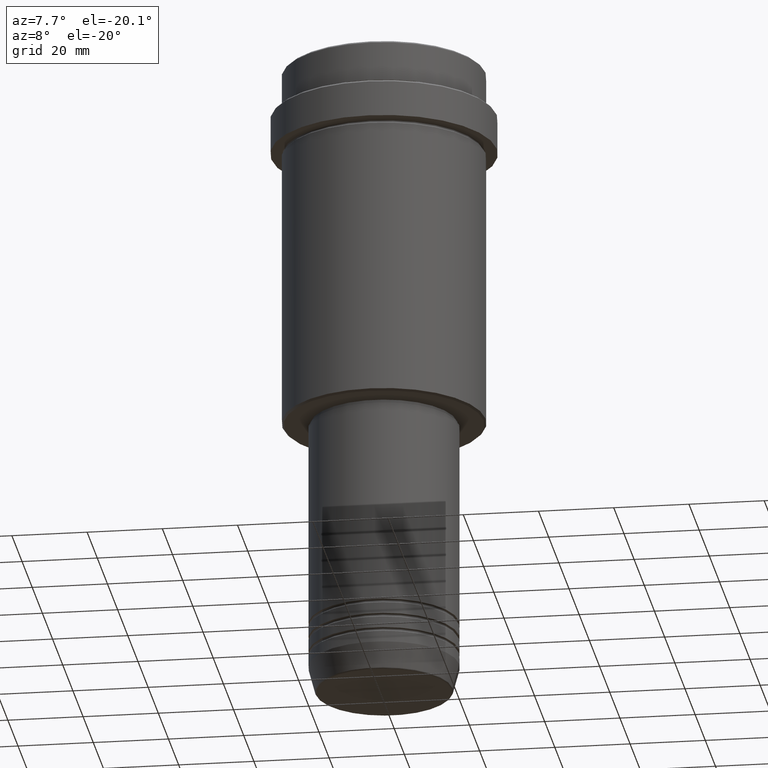
[diagram: clean part render]
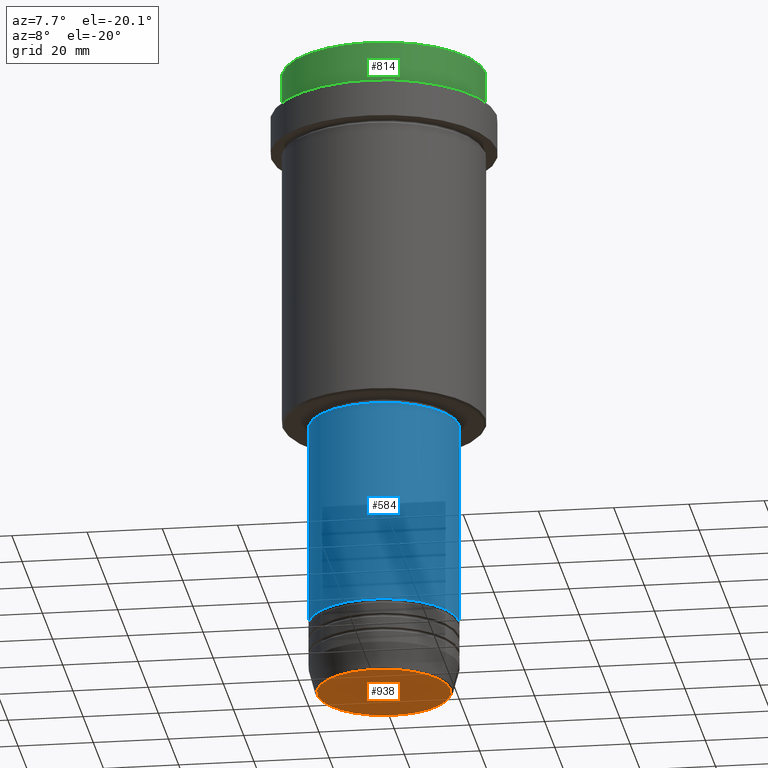
[diagram: same view with three faces highlighted in distinct colors, each labeled with its STEP entity id]
A machine part, auxiliary view with three faces highlighted in distinct colors.
Their STEP definitions:

[orange] entity #938 — the highlighted planar face has unit normal (0, -0, 1).
#2 = CIRCLE ( 'NONE', #435, 17.74069215899266538 ) ;
#114 = AXIS2_PLACEMENT_3D ( 'NONE', #652, #232, #764 ) ;
#217 = FACE_OUTER_BOUND ( 'NONE', #494, .T. ) ;
#232 = DIRECTION ( 'NONE',  ( 0.000000000000000000, -0.000000000000000000, 1.000000000000000000 ) ) ;
#253 = CARTESIAN_POINT ( 'NONE',  ( 0.000000000000000000, 0.000000000000000000, -173.0000000000000000 ) ) ;
#331 = PLANE ( 'NONE',  #114 ) ;
#435 = AXIS2_PLACEMENT_3D ( 'NONE', #1180, #860, #1073 ) ;
#494 = EDGE_LOOP ( 'NONE', ( #887, #941 ) ) ;
#520 = VERTEX_POINT ( 'NONE', #861 ) ;
#652 = CARTESIAN_POINT ( 'NONE',  ( 0.000000000000000000, 0.000000000000000000, -173.0000000000000000 ) ) ;
#681 = DIRECTION ( 'NONE',  ( 0.000000000000000000, 0.000000000000000000, -1.000000000000000000 ) ) ;
#688 = AXIS2_PLACEMENT_3D ( 'NONE', #253, #681, #1020 ) ;
#764 = DIRECTION ( 'NONE',  ( 1.000000000000000000, 0.000000000000000000, 0.000000000000000000 ) ) ;
#860 = DIRECTION ( 'NONE',  ( 0.000000000000000000, 0.000000000000000000, -1.000000000000000000 ) ) ;
#861 = CARTESIAN_POINT ( 'NONE',  ( 17.74069215899266538, 0.000000000000000000, -173.0000000000000000 ) ) ;
#887 = ORIENTED_EDGE ( 'NONE', *, *, #1013, .T. ) ;
#938 = ADVANCED_FACE ( 'NONE', ( #217 ), #331, .F. ) ;
#941 = ORIENTED_EDGE ( 'NONE', *, *, #1133, .T. ) ;
#1013 = EDGE_CURVE ( 'NONE', #520, #1036, #2, .T. ) ;
#1020 = DIRECTION ( 'NONE',  ( 1.000000000000000000, 0.000000000000000000, 0.000000000000000000 ) ) ;
#1036 = VERTEX_POINT ( 'NONE', #1406 ) ;
#1073 = DIRECTION ( 'NONE',  ( 1.000000000000000000, 0.000000000000000000, 0.000000000000000000 ) ) ;
#1133 = EDGE_CURVE ( 'NONE', #1036, #520, #1303, .T. ) ;
#1180 = CARTESIAN_POINT ( 'NONE',  ( 0.000000000000000000, 0.000000000000000000, -173.0000000000000000 ) ) ;
#1303 = CIRCLE ( 'NONE', #688, 17.74069215899266538 ) ;
#1406 = CARTESIAN_POINT ( 'NONE',  ( -17.74069215899266538, 2.202181136001358353E-15, -173.0000000000000000 ) ) ;

[blue] entity #584 — the highlighted cylindrical surface (partial cylindrical patch) has radius 20 mm, axis along (-0, -0, 1).
#19 = VECTOR ( 'NONE', #418, 1000.000000000000000 ) ;
#65 = LINE ( 'NONE', #950, #19 ) ;
#121 = CYLINDRICAL_SURFACE ( 'NONE', #842, 19.99999999999999645 ) ;
#140 = CIRCLE ( 'NONE', #640, 20.00000000000000000 ) ;
#150 = ORIENTED_EDGE ( 'NONE', *, *, #335, .F. ) ;
#261 = CARTESIAN_POINT ( 'NONE',  ( 0.000000000000000000, 0.000000000000000000, -153.9999999999999147 ) ) ;
#317 = CARTESIAN_POINT ( 'NONE',  ( 0.000000000000000000, 0.000000000000000000, 0.000000000000000000 ) ) ;
#335 = EDGE_CURVE ( 'NONE', #544, #1153, #65, .T. ) ;
#418 = DIRECTION ( 'NONE',  ( -0.000000000000000000, -0.000000000000000000, 1.000000000000000000 ) ) ;
#447 = CARTESIAN_POINT ( 'NONE',  ( -20.00000000000000000, 2.449293598294706513E-15, -153.9999999999999147 ) ) ;
#531 = ORIENTED_EDGE ( 'NONE', *, *, #1335, .T. ) ;
#535 = ORIENTED_EDGE ( 'NONE', *, *, #1095, .F. ) ;
#544 = VERTEX_POINT ( 'NONE', #447 ) ;
#584 = ADVANCED_FACE ( 'NONE', ( #647 ), #121, .T. ) ;
#640 = AXIS2_PLACEMENT_3D ( 'NONE', #261, #1228, #1221 ) ;
#645 = LINE ( 'NONE', #1387, #1048 ) ;
#647 = FACE_OUTER_BOUND ( 'NONE', #713, .T. ) ;
#662 = CIRCLE ( 'NONE', #1070, 19.99999999999999645 ) ;
#675 = CARTESIAN_POINT ( 'NONE',  ( 19.99999999999999645, 0.000000000000000000, -99.00000000000000000 ) ) ;
#713 = EDGE_LOOP ( 'NONE', ( #150, #1287, #531, #535 ) ) ;
#752 = DIRECTION ( 'NONE',  ( 1.000000000000000000, 0.000000000000000000, 0.000000000000000000 ) ) ;
#782 = DIRECTION ( 'NONE',  ( 1.000000000000000000, 0.000000000000000000, 0.000000000000000000 ) ) ;
#789 = CARTESIAN_POINT ( 'NONE',  ( 0.000000000000000000, 0.000000000000000000, -99.00000000000000000 ) ) ;
#842 = AXIS2_PLACEMENT_3D ( 'NONE', #317, #884, #752 ) ;
#857 = DIRECTION ( 'NONE',  ( -0.000000000000000000, -0.000000000000000000, 1.000000000000000000 ) ) ;
#884 = DIRECTION ( 'NONE',  ( -0.000000000000000000, -0.000000000000000000, 1.000000000000000000 ) ) ;
#899 = DIRECTION ( 'NONE',  ( -0.000000000000000000, -0.000000000000000000, 1.000000000000000000 ) ) ;
#950 = CARTESIAN_POINT ( 'NONE',  ( -19.99999999999999645, 2.449293598294706119E-15, 0.000000000000000000 ) ) ;
#967 = VERTEX_POINT ( 'NONE', #1294 ) ;
#1048 = VECTOR ( 'NONE', #857, 1000.000000000000000 ) ;
#1070 = AXIS2_PLACEMENT_3D ( 'NONE', #789, #899, #782 ) ;
#1095 = EDGE_CURVE ( 'NONE', #1153, #1125, #662, .T. ) ;
#1096 = EDGE_CURVE ( 'NONE', #544, #967, #140, .T. ) ;
#1125 = VERTEX_POINT ( 'NONE', #675 ) ;
#1153 = VERTEX_POINT ( 'NONE', #1216 ) ;
#1216 = CARTESIAN_POINT ( 'NONE',  ( -19.99999999999999645, 2.449293598294706119E-15, -99.00000000000000000 ) ) ;
#1221 = DIRECTION ( 'NONE',  ( 1.000000000000000000, 0.000000000000000000, 0.000000000000000000 ) ) ;
#1228 = DIRECTION ( 'NONE',  ( -0.000000000000000000, -0.000000000000000000, 1.000000000000000000 ) ) ;
#1287 = ORIENTED_EDGE ( 'NONE', *, *, #1096, .T. ) ;
#1294 = CARTESIAN_POINT ( 'NONE',  ( 20.00000000000000000, 0.000000000000000000, -153.9999999999999147 ) ) ;
#1335 = EDGE_CURVE ( 'NONE', #967, #1125, #645, .T. ) ;
#1387 = CARTESIAN_POINT ( 'NONE',  ( 19.99999999999999645, 0.000000000000000000, 0.000000000000000000 ) ) ;

[green] entity #814 — the highlighted cylindrical surface (partial cylindrical patch) has radius 27 mm, axis along (-0, -0, 1).
#16 = DIRECTION ( 'NONE',  ( -0.000000000000000000, -0.000000000000000000, 1.000000000000000000 ) ) ;
#39 = ORIENTED_EDGE ( 'NONE', *, *, #564, .T. ) ;
#46 = CIRCLE ( 'NONE', #691, 26.99999999999999645 ) ;
#73 = CARTESIAN_POINT ( 'NONE',  ( -26.99999999999999645, 3.306546357697853339E-15, 0.000000000000000000 ) ) ;
#85 = DIRECTION ( 'NONE',  ( -0.000000000000000000, -0.000000000000000000, 1.000000000000000000 ) ) ;
#158 = VECTOR ( 'NONE', #16, 1000.000000000000000 ) ;
#200 = VERTEX_POINT ( 'NONE', #606 ) ;
#214 = DIRECTION ( 'NONE',  ( 1.000000000000000000, 0.000000000000000000, 0.000000000000000000 ) ) ;
#242 = ORIENTED_EDGE ( 'NONE', *, *, #851, .F. ) ;
#281 = VERTEX_POINT ( 'NONE', #362 ) ;
#312 = DIRECTION ( 'NONE',  ( 1.000000000000000000, 0.000000000000000000, 0.000000000000000000 ) ) ;
#347 = CARTESIAN_POINT ( 'NONE',  ( -26.99999999999999645, 3.306546357697853339E-15, -0.5000000000000038858 ) ) ;
#362 = CARTESIAN_POINT ( 'NONE',  ( 26.99999999999999645, 0.000000000000000000, -11.00000000000000178 ) ) ;
#389 = FACE_OUTER_BOUND ( 'NONE', #399, .T. ) ;
#399 = EDGE_LOOP ( 'NONE', ( #242, #1173, #39, #1042 ) ) ;
#408 = LINE ( 'NONE', #73, #1045 ) ;
#502 = CIRCLE ( 'NONE', #896, 26.99999999999999645 ) ;
#515 = DIRECTION ( 'NONE',  ( -0.000000000000000000, -0.000000000000000000, 1.000000000000000000 ) ) ;
#564 = EDGE_CURVE ( 'NONE', #281, #674, #1100, .T. ) ;
#606 = CARTESIAN_POINT ( 'NONE',  ( -26.99999999999999645, 3.306546357697853339E-15, -11.00000000000000178 ) ) ;
#674 = VERTEX_POINT ( 'NONE', #912 ) ;
#691 = AXIS2_PLACEMENT_3D ( 'NONE', #733, #1195, #214 ) ;
#733 = CARTESIAN_POINT ( 'NONE',  ( 0.000000000000000000, 0.000000000000000000, -0.5000000000000038858 ) ) ;
#765 = CARTESIAN_POINT ( 'NONE',  ( 26.99999999999999645, 0.000000000000000000, 0.000000000000000000 ) ) ;
#814 = ADVANCED_FACE ( 'NONE', ( #389 ), #836, .T. ) ;
#836 = CYLINDRICAL_SURFACE ( 'NONE', #1230, 26.99999999999999645 ) ;
#851 = EDGE_CURVE ( 'NONE', #200, #1156, #408, .T. ) ;
#896 = AXIS2_PLACEMENT_3D ( 'NONE', #1271, #965, #312 ) ;
#912 = CARTESIAN_POINT ( 'NONE',  ( 26.99999999999999645, 0.000000000000000000, -0.5000000000000038858 ) ) ;
#965 = DIRECTION ( 'NONE',  ( -0.000000000000000000, -0.000000000000000000, 1.000000000000000000 ) ) ;
#1042 = ORIENTED_EDGE ( 'NONE', *, *, #1288, .T. ) ;
#1045 = VECTOR ( 'NONE', #85, 1000.000000000000000 ) ;
#1100 = LINE ( 'NONE', #765, #158 ) ;
#1147 = CARTESIAN_POINT ( 'NONE',  ( 0.000000000000000000, 0.000000000000000000, 0.000000000000000000 ) ) ;
#1156 = VERTEX_POINT ( 'NONE', #347 ) ;
#1173 = ORIENTED_EDGE ( 'NONE', *, *, #1238, .T. ) ;
#1195 = DIRECTION ( 'NONE',  ( 0.000000000000000000, 0.000000000000000000, -1.000000000000000000 ) ) ;
#1230 = AXIS2_PLACEMENT_3D ( 'NONE', #1147, #515, #1254 ) ;
#1238 = EDGE_CURVE ( 'NONE', #200, #281, #502, .T. ) ;
#1254 = DIRECTION ( 'NONE',  ( 1.000000000000000000, 0.000000000000000000, 0.000000000000000000 ) ) ;
#1271 = CARTESIAN_POINT ( 'NONE',  ( 0.000000000000000000, 0.000000000000000000, -11.00000000000000178 ) ) ;
#1288 = EDGE_CURVE ( 'NONE', #674, #1156, #46, .T. ) ;